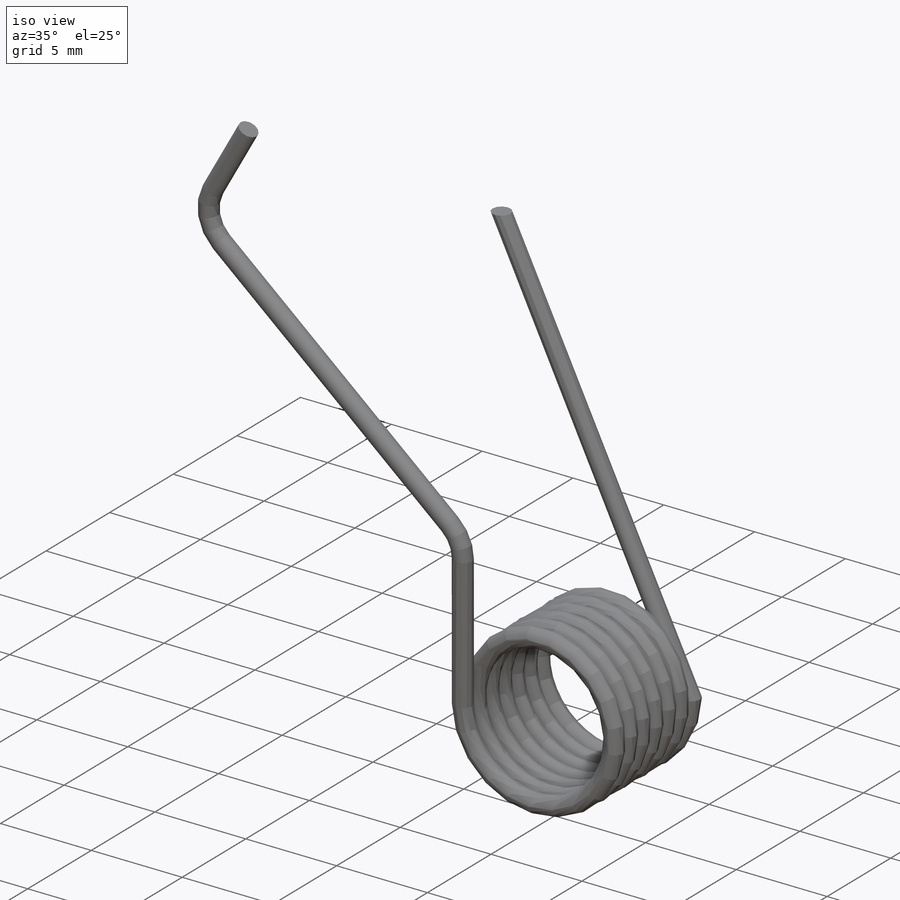
[diagram: iso view]
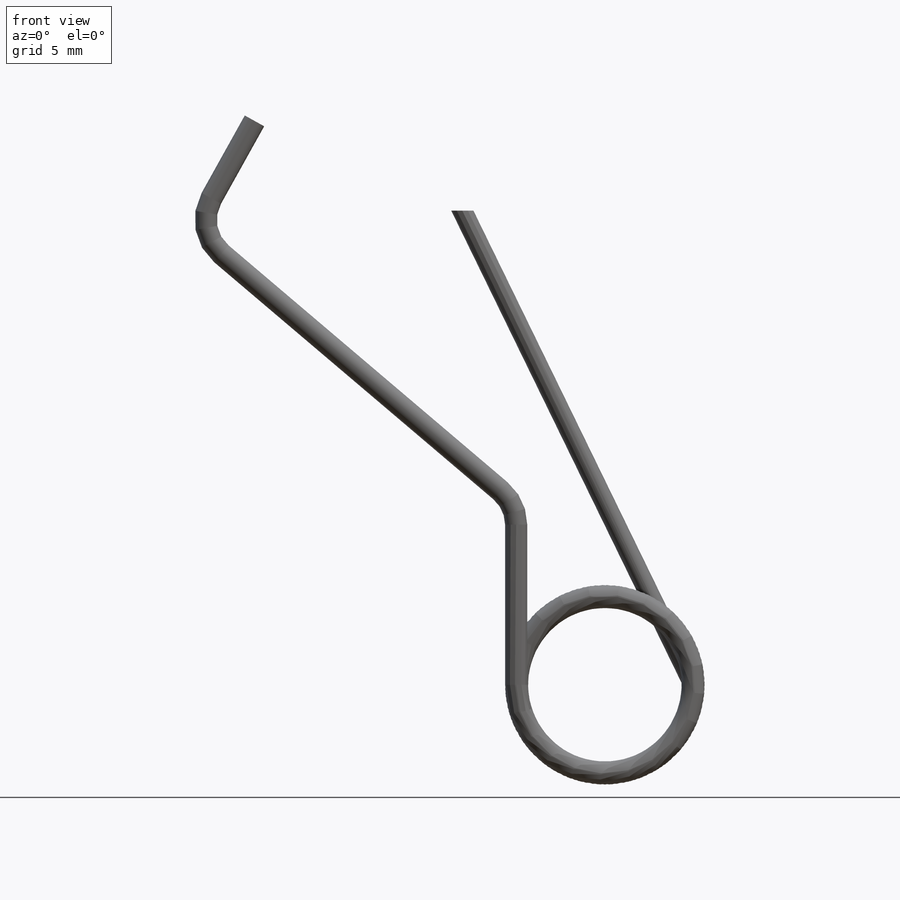
[diagram: front view]
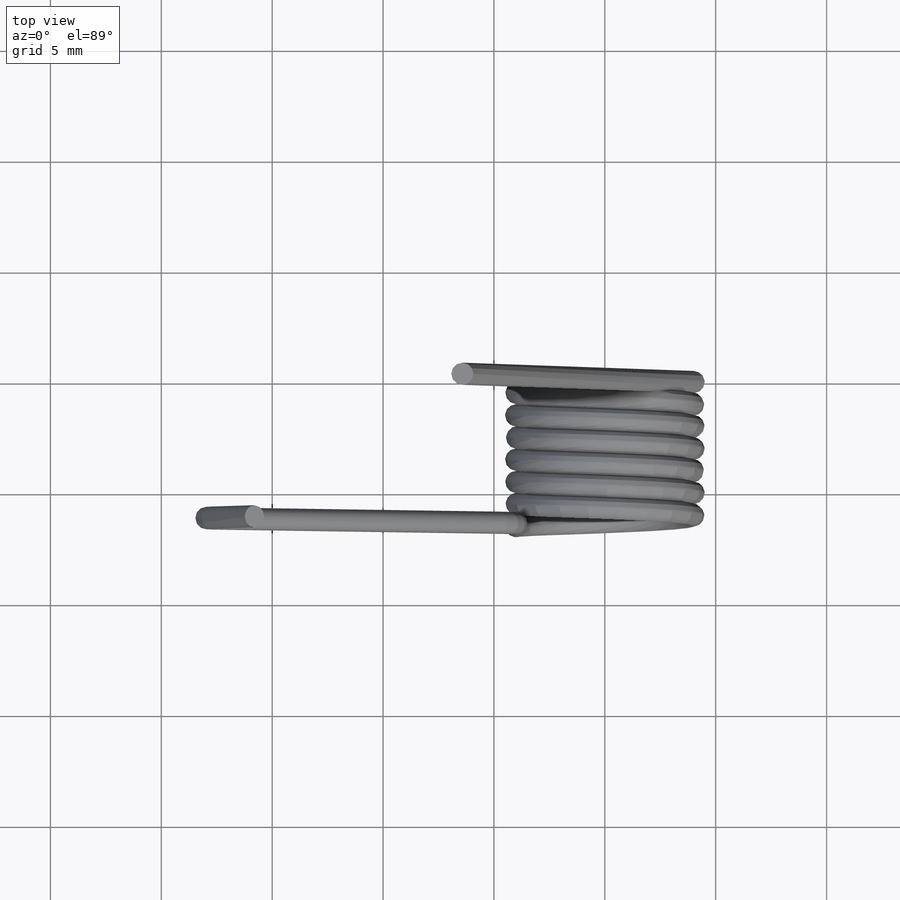
[diagram: top view]
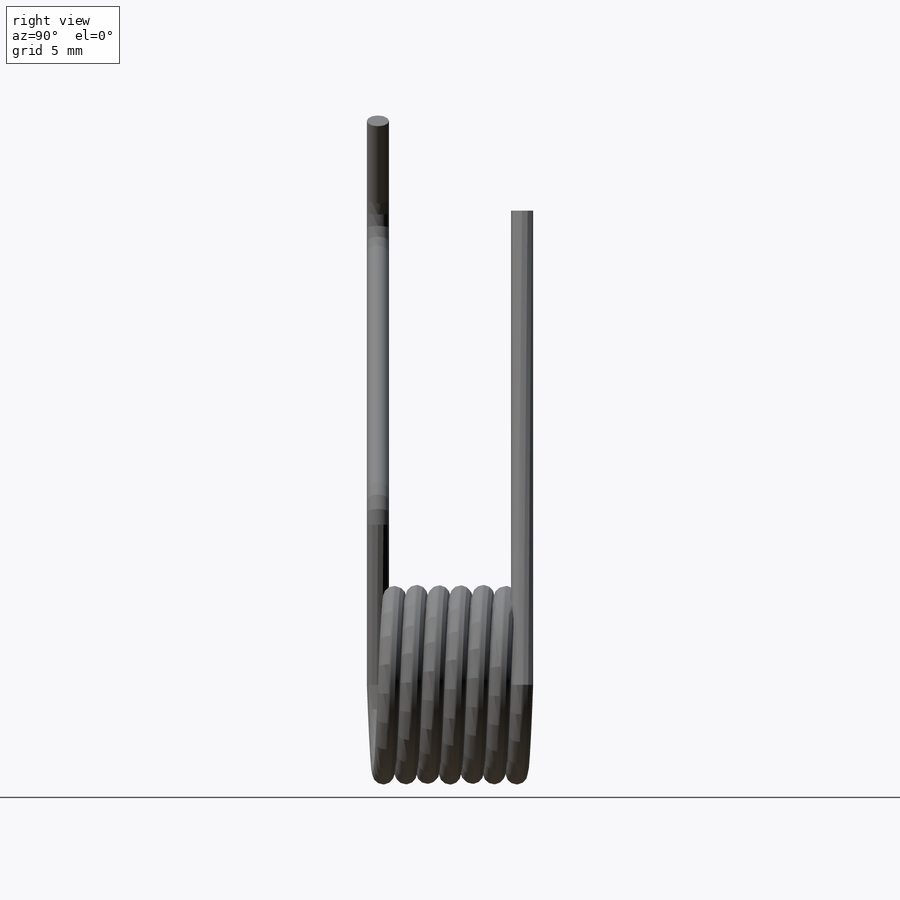
[diagram: right view]
SOLIDWORKS PART (.sldprt)
format: sldprt  version: not decoded by parser v0  size: 607,232 bytes
history: native  units: mm
features: sketch x6, plane x4, sweep x3, material x1, helix x1 (+10 scaffold rows collapsed)
feature tree (25):
  scaffold x10  (default folders/planes/origin — collapsed)
  material  "Matériau <non spécifié>"
  plane  "Face"
  plane  "Dessus"
  plane  "Droite"
  plane  "Plan1"  Offset=6.5mm
  sketch  "Esquisse2"  dims[D1=8.0mm]
  helix  "Hélice/Spirale1"  Pitch=6.5mm
  sketch  "Esquisse3"  dims[D1=1.0mm]
  sweep  "Balayage1"
  sketch  "Esquisse4"  dims[c1.D1=2.0mm c1.D9=2.0mm c1.D2=2.0mm c2.D1=2.0mm c2.D2=4.0mm c2.D3=13.74mm c2.D4=10.0mm c2.D5=9.07mm c2.D6=~12.589221mm c3.D6=101.21deg c3.D7=4.0mm c3.D8=9.07mm c3.D10=10.0mm c3.D11=13.74mm c3.D12=~16.516283mm c4.D12=101.21deg c4.D3=~14.451504mm c5.D3=101.21deg c5.D4=4.0mm c5.D5=13.74mm c5.D6=10.0mm c5.D13=~16.516283mm c5.D12=~2.05932mm c5.D7=~2.588029mm c5.D1=~7.219145mm]
  sketch  "Esquisse5"  dims[D1=1.0mm]
  sweep  "Balayage2"
  sketch  "Esquisse6"  dims[c1.D1=~15.929753mm c2.D1=25.0deg c2.D2=15.0mm c3.D1=~13.594617mm c4.D1=~30.827157deg c4.D3=~2.33954mm c5.D3=~5.827157deg c5.D1=~25.665208mm c6.D1=26.0deg]
  sketch  "Esquisse7"  dims[D1=1.0mm]
  sweep  "Balayage3"
decode coverage: 7 of 10 modeling features carry decoded parameters
note: ~ marks probable driven/reference dimensions
note: suppression state not decoded; provenance and decode notes live in map.json
